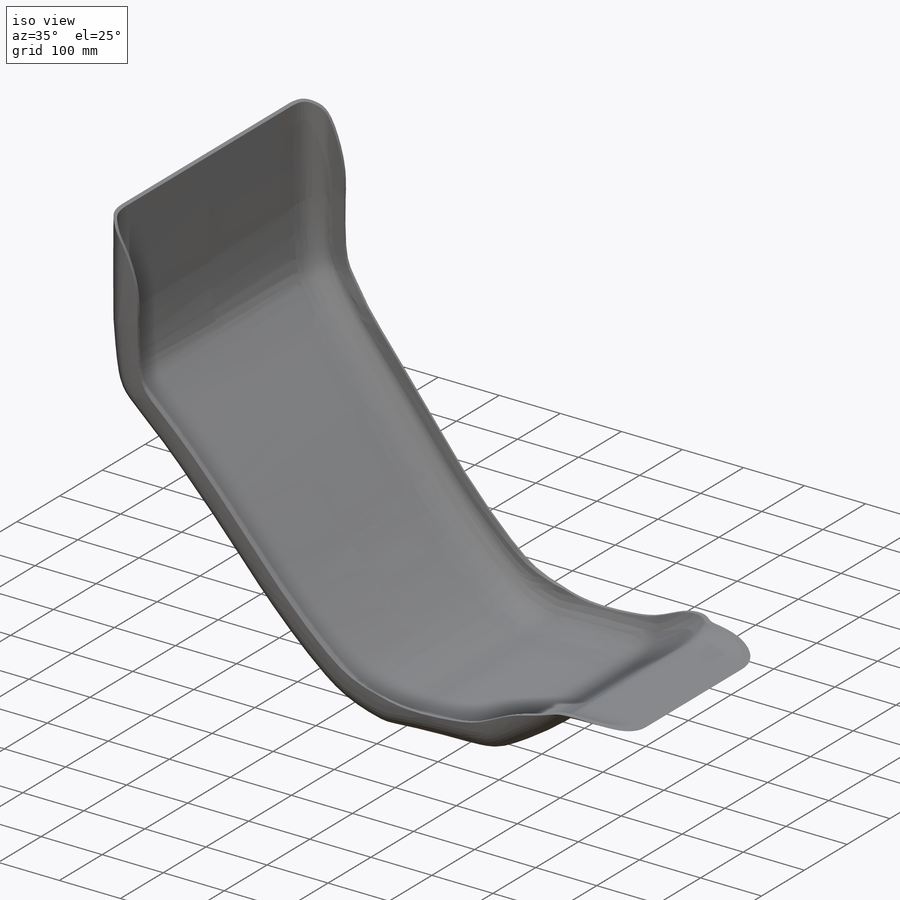
[diagram: iso view]
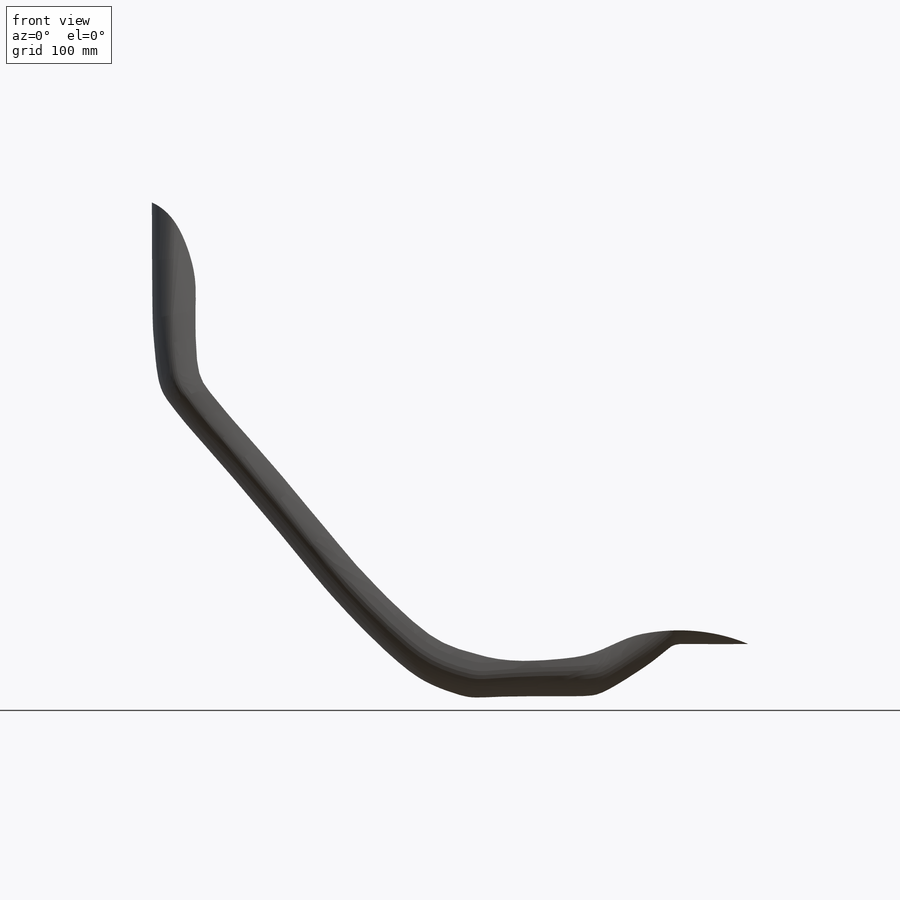
[diagram: front view]
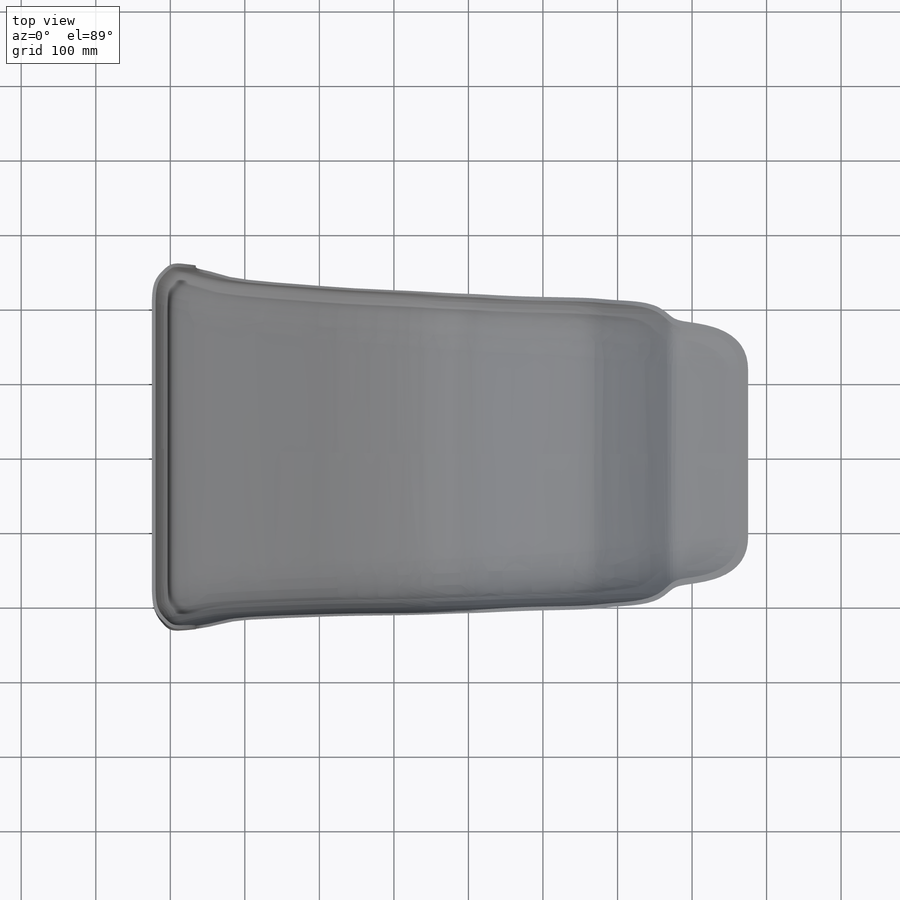
[diagram: top view]
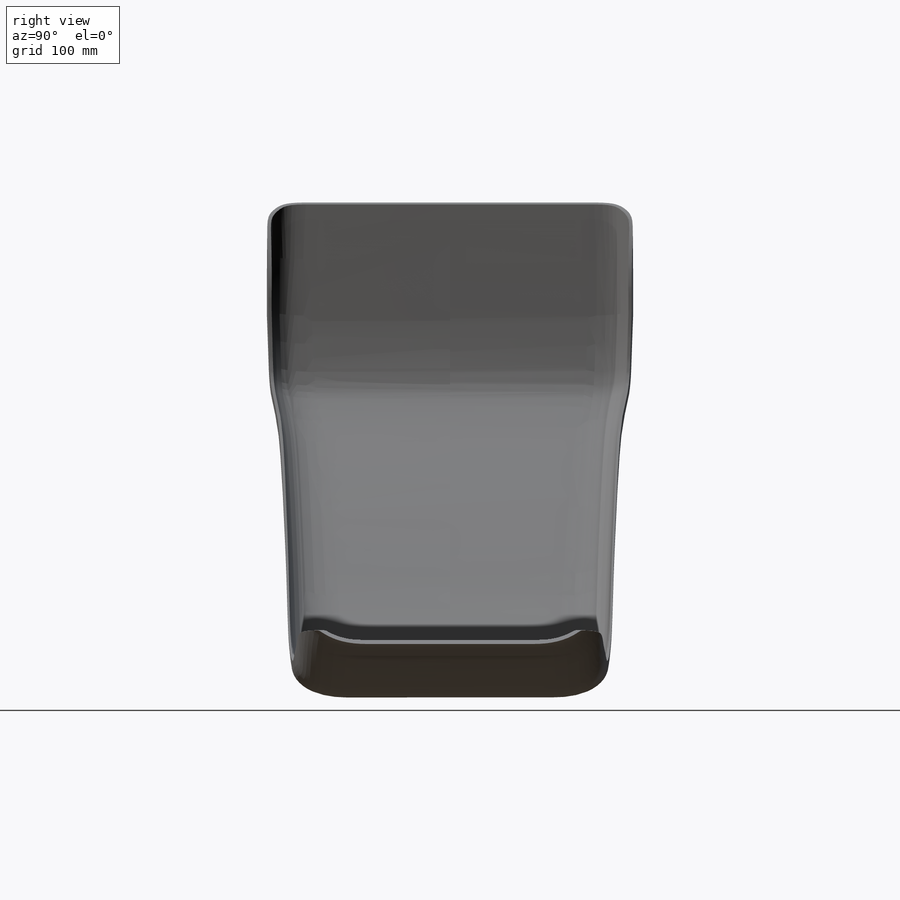
[diagram: right view]
SOLIDWORKS PART (.sldprt)
format: sldprt  version: not decoded by parser v0  size: 1,937,408 bytes
history: native  units: mm
features: sketch x13, plane x9, extrude x3, cut_extrude x3, mirror x2, material x1, move_body x1 + 1 further entry (+8 scaffold rows collapsed)
feature tree (41):
  scaffold x8  (default folders/planes/origin — collapsed)
  material  "Material <nicht festgelegt>"
  "Kern-Oberflächenkörper"
  plane  "Ebene vorne"
  plane  "Ebene oben"
  plane  "Ebene rechts"
  sketch  "Skizze1"  dims[c1.D1=50.0deg c1.D4=500.0mm c1.D5=50.0mm c1.D6=~1566.630998mm c2.D6=50.0deg c2.D7=~201.000309mm c2.D5=~222.649273mm c3.D5=~46.531362deg c4.D5=~150.99404mm c5.D5=35.0deg c5.D2=2.5mm c5.D3=2.5mm c6.D2=2.5mm c6.D3=2.5mm c7.D2=2.5mm c7.D3=2.5mm c8.D2=2.5mm c8.D3=2.5mm c9.D2=2.5mm c9.D3=2.5mm]
  extrude  "Aufsatz-Linear austragen1"  Depth=212.5mm
  plane  "Ebene2"  Offset=106.25mm
  sketch  "Skizze15"  dims[D1=100.0mm D2=50.0mm]
  plane  "Sitz Unterkante"  Offset=2.5mm
  sketch  "Skizze19"  dims[D1=25.0mm]
  sketch  "Skizze20"  dims[c1.D1=~33.254771mm c2.D1=~33.254771mm c3.D1=2.5mm c3.D2=2.5mm c4.D1=2.5mm c4.D2=2.5mm c5.D1=2.5mm c5.D2=2.5mm]
  sketch  "Skizze26"  dims[c1.D1=~28.206178mm c1.D2=70.0mm c2.D1=2.5mm c2.D2=2.5mm c3.D1=2.5mm c3.D2=2.5mm c4.D1=2.5mm c4.D2=2.5mm c5.D1=2.5mm c5.D2=2.5mm c5.D3=2.5mm]
  sketch  "Skizze28"
  cut_extrude  "Schnitt-Linear austragen2"  [1 undecoded]
  plane  "Ebene4"  Offset=428mm
  plane  "Ebene5"
  plane  "Ebene6"  Offset=428mm
  move_body  "Körper-Verschieben/Kopieren1"
  sketch  "Skizze35"
  cut_extrude  "Schnitt-Linear austragen3"  [1 undecoded]
  sketch  "Skizze36"
  cut_extrude  "Schnitt-Linear austragen4"  [1 undecoded]
  sketch  "Skizze37"  dims[D1=~148.870658mm]
  extrude  "Aufsatz-Linear austragen2"  Depth=730mm
  mirror  "Spiegeln1"
  sketch  "Skizze40"  dims[D1=~601.135409mm]
  sketch  "Skizze38"  dims[D1=148.1899mm]
  extrude  "Aufsatz-Linear austragen3"  Depth=730mm
  plane  "Ebene7"  Offset=375mm
  sketch  "3D-Skizze1"
  mirror  "3D-Skizze2"
  sketch  "Skizze43"  dims[D1=~1666.647329mm D2=~1539.447659mm]
decode coverage: 12 of 22 modeling features carry decoded parameters; 1 rows unclassified (native names shown)
note: ~ marks probable driven/reference dimensions
note: 3 parameter values undecoded
summary: no parameter record found for 3 features
note: suppression state not decoded; provenance and decode notes live in map.json
